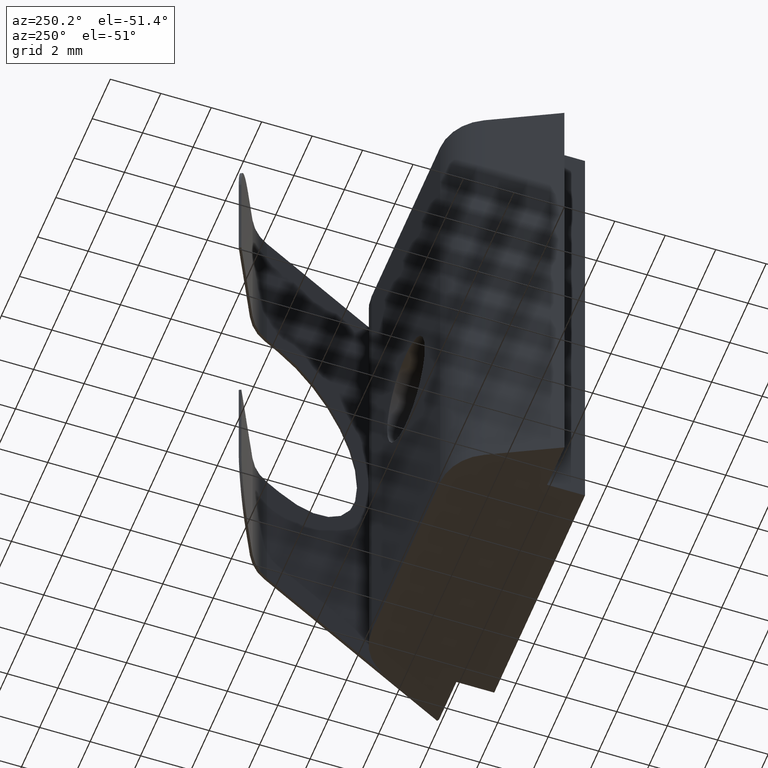
[diagram: clean part render]
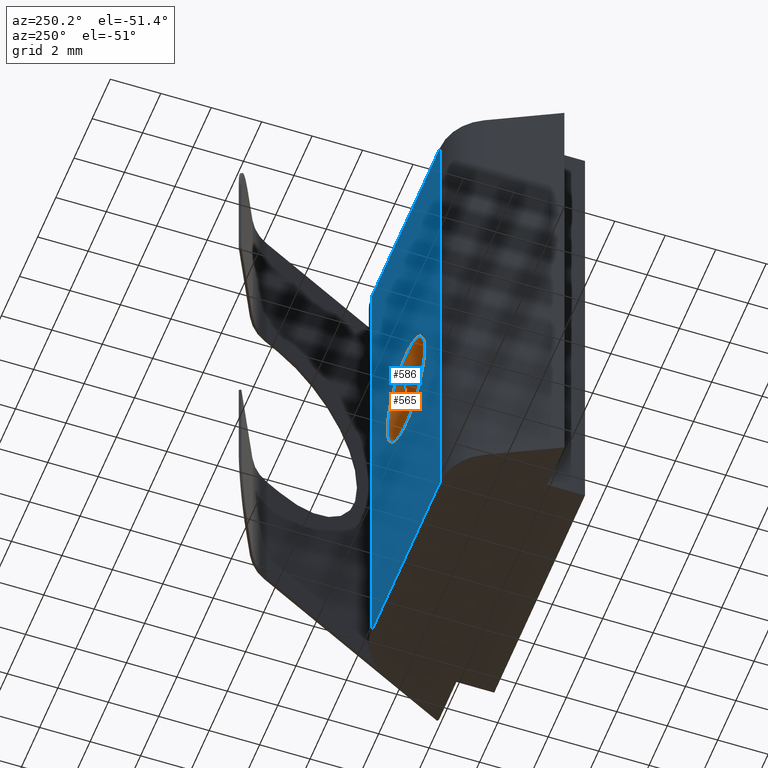
[diagram: same view with the hole feature highlighted: cylindrical wall and planar end face, labeled with their STEP entity ids]
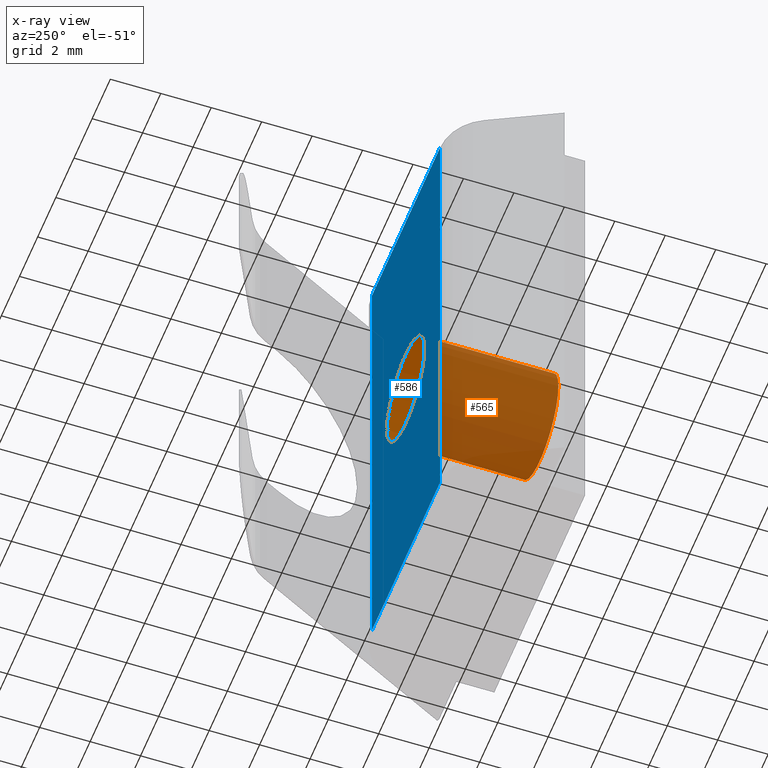
[diagram: x-ray of the same camera — body ghosted, the hole faces saturated]
A machine part, auxiliary view. The highlighted faces form one hole feature of diameter 4.134 mm: the cylindrical wall (entity #565, orange) and its adjacent planar end face (entity #586, blue) — they share a circular edge in the B-rep.
The next image is the same camera in x-ray (body ghosted, the hole faces saturated) — the bore reads through the body.
Wall:
#38=FACE_OUTER_BOUND('',#68,.T.);
#68=EDGE_LOOP('',(#388,#389,#390,#391));
#100=LINE('',#836,#164);
#164=VECTOR('',#673,2.067);
#228=CIRCLE('',#619,2.067);
#229=CIRCLE('',#620,2.067);
#248=VERTEX_POINT('',#833);
#249=VERTEX_POINT('',#835);
#304=EDGE_CURVE('',#248,#248,#228,.T.);
#305=EDGE_CURVE('',#248,#249,#100,.T.);
#306=EDGE_CURVE('',#249,#249,#229,.T.);
#388=ORIENTED_EDGE('',*,*,#304,.F.);
#389=ORIENTED_EDGE('',*,*,#305,.T.);
#390=ORIENTED_EDGE('',*,*,#306,.F.);
#391=ORIENTED_EDGE('',*,*,#305,.F.);
#556=CYLINDRICAL_SURFACE('',#618,2.067);
#565=ADVANCED_FACE('',(#38),#556,.F.);
#618=AXIS2_PLACEMENT_3D('',#832,#669,#670);
#619=AXIS2_PLACEMENT_3D('',#834,#671,#672);
#620=AXIS2_PLACEMENT_3D('',#837,#674,#675);
#669=DIRECTION('center_axis',(0.,-1.,0.));
#670=DIRECTION('ref_axis',(1.,0.,0.));
#671=DIRECTION('center_axis',(0.,1.,0.));
#672=DIRECTION('ref_axis',(1.,0.,0.));
#673=DIRECTION('',(0.,1.,0.));
#674=DIRECTION('center_axis',(0.,-1.,0.));
#675=DIRECTION('ref_axis',(1.,0.,0.));
#832=CARTESIAN_POINT('Origin',(0.,25.7826708357418,10.));
#833=CARTESIAN_POINT('',(-2.067,-1.5,10.));
#834=CARTESIAN_POINT('Origin',(0.,-1.5,10.));
#835=CARTESIAN_POINT('',(-2.067,3.8,10.));
#836=CARTESIAN_POINT('',(-2.067,25.7826708357418,10.));
#837=CARTESIAN_POINT('Origin',(0.,3.8,10.));
End face:
#15=FACE_BOUND('',#90,.T.);
#30=PLANE('',#657);
#59=FACE_OUTER_BOUND('',#89,.T.);
#89=EDGE_LOOP('',(#505,#506,#507,#508));
#90=EDGE_LOOP('',(#509));
#138=LINE('',#951,#202);
#149=LINE('',#979,#213);
#150=LINE('',#982,#214);
#151=LINE('',#983,#215);
#202=VECTOR('',#769,10.);
#213=VECTOR('',#796,10.);
#214=VECTOR('',#799,10.);
#215=VECTOR('',#800,10.);
#229=CIRCLE('',#620,2.067);
#249=VERTEX_POINT('',#835);
#286=VERTEX_POINT('',#948);
#287=VERTEX_POINT('',#950);
#296=VERTEX_POINT('',#977);
#297=VERTEX_POINT('',#981);
#306=EDGE_CURVE('',#249,#249,#229,.T.);
#358=EDGE_CURVE('',#286,#287,#138,.T.);
#372=EDGE_CURVE('',#296,#286,#149,.T.);
#373=EDGE_CURVE('',#297,#296,#150,.T.);
#374=EDGE_CURVE('',#287,#297,#151,.T.);
#505=ORIENTED_EDGE('',*,*,#372,.F.);
#506=ORIENTED_EDGE('',*,*,#373,.F.);
#507=ORIENTED_EDGE('',*,*,#374,.F.);
#508=ORIENTED_EDGE('',*,*,#358,.F.);
#509=ORIENTED_EDGE('',*,*,#306,.T.);
#586=ADVANCED_FACE('',(#59,#15),#30,.T.);
#620=AXIS2_PLACEMENT_3D('',#837,#674,#675);
#657=AXIS2_PLACEMENT_3D('',#980,#797,#798);
#674=DIRECTION('center_axis',(0.,-1.,0.));
#675=DIRECTION('ref_axis',(1.,0.,0.));
#769=DIRECTION('',(-1.,0.,0.));
#796=DIRECTION('',(0.,0.,1.));
#797=DIRECTION('center_axis',(0.,1.,0.));
#798=DIRECTION('ref_axis',(-1.,0.,0.));
#799=DIRECTION('',(1.,0.,0.));
#800=DIRECTION('',(0.,0.,-1.));
#835=CARTESIAN_POINT('',(-2.067,3.8,10.));
#837=CARTESIAN_POINT('Origin',(0.,3.8,10.));
#948=CARTESIAN_POINT('',(3.76393202250021,3.8,20.));
#950=CARTESIAN_POINT('',(-3.76393202250021,3.8,20.));
#951=CARTESIAN_POINT('',(-5.,3.8,20.));
#977=CARTESIAN_POINT('',(3.76393202250021,3.8,0.));
#979=CARTESIAN_POINT('',(3.76393202250021,3.8,0.));
#980=CARTESIAN_POINT('Origin',(5.,3.8,0.));
#981=CARTESIAN_POINT('',(-3.76393202250021,3.8,0.));
#982=CARTESIAN_POINT('',(-5.,3.8,0.));
#983=CARTESIAN_POINT('',(-3.76393202250021,3.8,0.));